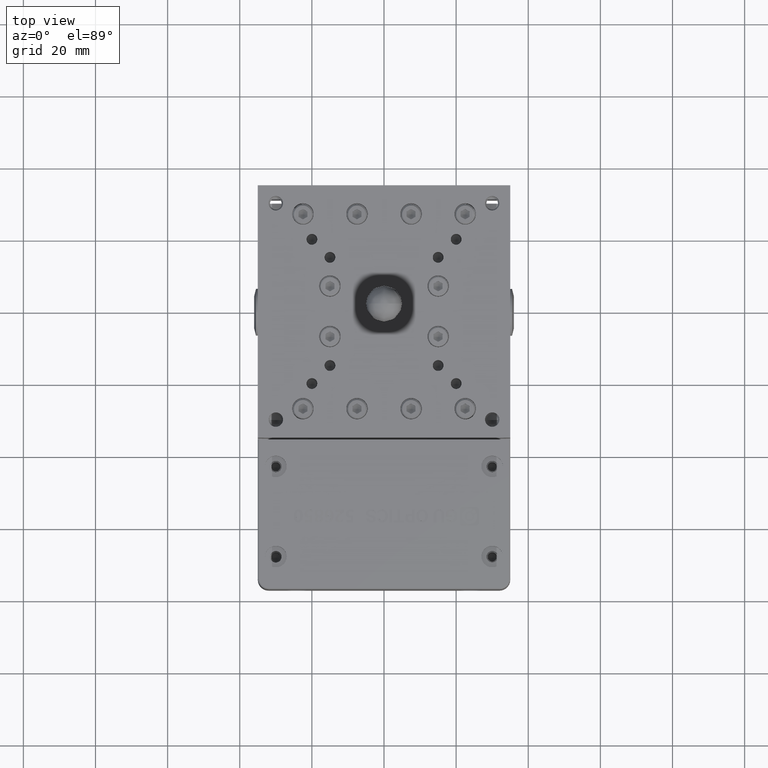
[diagram: clean part render]
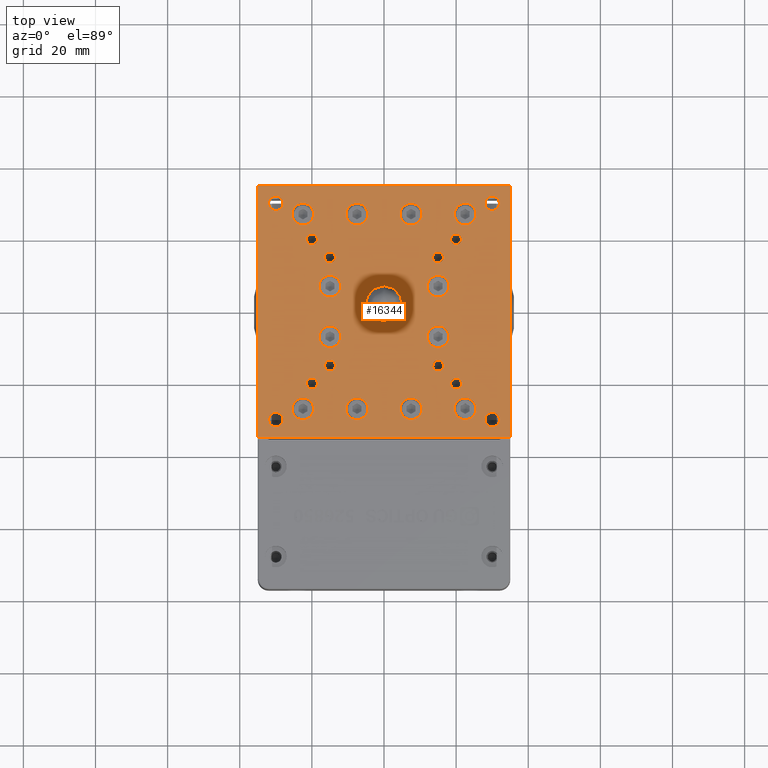
[diagram: same view with one face highlighted and labeled with its STEP entity id]
A machine part, top view. The second image highlights one B-rep face of the part: STEP entity #16344.
In plain terms, the highlighted planar face has unit normal (0, 0, 1).
Its self-contained STEP definition (entity closure, byte-faithful):
#84 = EDGE_CURVE ( 'NONE', #33697, #4668, #62329, .T. ) ;
#746 = CARTESIAN_POINT ( 'NONE',  ( 20.00000084893999700, -20.00000000000000000, 25.99999980735999800 ) ) ;
#747 = CIRCLE ( 'NONE', #22461, 3.000000000000002700 ) ;
#855 = EDGE_LOOP ( 'NONE', ( #10549, #48262 ) ) ;
#968 = AXIS2_PLACEMENT_3D ( 'NONE', #67553, #28471, #74145 ) ;
#1034 = CARTESIAN_POINT ( 'NONE',  ( -16.49999915106536400, 15.00000000000000000, 25.99999980735999800 ) ) ;
#1527 = CARTESIAN_POINT ( 'NONE',  ( 30.00000084893999700, 30.00000000000000000, 25.99999980735999800 ) ) ;
#1991 = CARTESIAN_POINT ( 'NONE',  ( -14.99999915105999700, 7.000000000000000000, 25.99999980735999800 ) ) ;
#2087 = VERTEX_POINT ( 'NONE', #54026 ) ;
#2173 = DIRECTION ( 'NONE',  ( 1.000000000000000000, 0.0000000000000000000, 0.0000000000000000000 ) ) ;
#2241 = CARTESIAN_POINT ( 'NONE',  ( 7.500000848934999600, -24.00000000000000000, 25.99999980735999800 ) ) ;
#2510 = VERTEX_POINT ( 'NONE', #78344 ) ;
#2529 = DIRECTION ( 'NONE',  ( 0.0000000000000000000, 1.000000000000000000, -1.156482317317873100E-015 ) ) ;
#2572 = ORIENTED_EDGE ( 'NONE', *, *, #63453, .F. ) ;
#2829 = AXIS2_PLACEMENT_3D ( 'NONE', #72536, #33407, #79086 ) ;
#2845 = AXIS2_PLACEMENT_3D ( 'NONE', #9225, #55006, #15837 ) ;
#2849 = CARTESIAN_POINT ( 'NONE',  ( 16.50000084893538600, 15.00000000000000000, 25.99999980735999800 ) ) ;
#2943 = DIRECTION ( 'NONE',  ( -0.0000000000000000000, 5.782411586589368500E-016, 1.000000000000000000 ) ) ;
#3049 = VECTOR ( 'NONE', #78395, 1000.000000000000000 ) ;
#3336 = ORIENTED_EDGE ( 'NONE', *, *, #65622, .F. ) ;
#3375 = DIRECTION ( 'NONE',  ( -0.0000000000000000000, 0.0000000000000000000, 1.000000000000000000 ) ) ;
#3688 = CIRCLE ( 'NONE', #10610, 2.999999999999999100 ) ;
#3779 = CARTESIAN_POINT ( 'NONE',  ( 22.50000084893999700, -24.00000000000000400, 25.99999980735999500 ) ) ;
#4031 = ORIENTED_EDGE ( 'NONE', *, *, #80754, .F. ) ;
#4156 = PLANE ( 'NONE',  #61993 ) ;
#4250 = VERTEX_POINT ( 'NONE', #23858 ) ;
#4456 = DIRECTION ( 'NONE',  ( 0.0000000000000000000, -0.0000000000000000000, 1.000000000000000000 ) ) ;
#4488 = FACE_BOUND ( 'NONE', #72363, .T. ) ;
#4668 = VERTEX_POINT ( 'NONE', #3779 ) ;
#4671 = CARTESIAN_POINT ( 'NONE',  ( -27.99999915105938800, 30.00000000000000000, 25.99999980735999800 ) ) ;
#4873 = ORIENTED_EDGE ( 'NONE', *, *, #41211, .F. ) ;
#4946 = VERTEX_POINT ( 'NONE', #32650 ) ;
#5258 = EDGE_CURVE ( 'NONE', #4946, #29195, #68198, .T. ) ;
#5481 = EDGE_CURVE ( 'NONE', #69488, #29465, #64023, .T. ) ;
#6043 = DIRECTION ( 'NONE',  ( 0.0000000000000000000, 0.0000000000000000000, 1.000000000000000000 ) ) ;
#6050 = DIRECTION ( 'NONE',  ( 0.0000000000000000000, 1.000000000000000000, -1.387778780781417700E-015 ) ) ;
#6258 = DIRECTION ( 'NONE',  ( 0.0000000000000000000, 0.0000000000000000000, 1.000000000000000000 ) ) ;
#6342 = VERTEX_POINT ( 'NONE', #80783 ) ;
#6366 = DIRECTION ( 'NONE',  ( 0.0000000000000000000, 1.000000000000000000, -1.156482317317870300E-015 ) ) ;
#6420 = AXIS2_PLACEMENT_3D ( 'NONE', #76171, #37098, #82770 ) ;
#6502 = AXIS2_PLACEMENT_3D ( 'NONE', #84321, #45230, #6050 ) ;
#6521 = FACE_BOUND ( 'NONE', #80540, .T. ) ;
#6534 = DIRECTION ( 'NONE',  ( 0.0000000000000000000, 0.0000000000000000000, 1.000000000000000000 ) ) ;
#6781 = EDGE_CURVE ( 'NONE', #29690, #21667, #33995, .T. ) ;
#6818 = DIRECTION ( 'NONE',  ( 0.0000000000000000000, -0.0000000000000000000, 1.000000000000000000 ) ) ;
#6851 = CARTESIAN_POINT ( 'NONE',  ( 15.00000084894000100, -7.000000000000000000, 25.99999980735999800 ) ) ;
#6963 = CIRCLE ( 'NONE', #65817, 2.000000000000608800 ) ;
#7293 = DIRECTION ( 'NONE',  ( 1.000000000000000000, 0.0000000000000000000, 0.0000000000000000000 ) ) ;
#7302 = CIRCLE ( 'NONE', #44271, 3.000000000000002700 ) ;
#7359 = EDGE_CURVE ( 'NONE', #21667, #29690, #36978, .T. ) ;
#7638 = CIRCLE ( 'NONE', #81306, 1.499999999993801400 ) ;
#8040 = CARTESIAN_POINT ( 'NONE',  ( 30.00000084893999700, -30.00000000000000000, 25.99999980735999800 ) ) ;
#8111 = DIRECTION ( 'NONE',  ( 1.000000000000000000, 0.0000000000000000000, 0.0000000000000000000 ) ) ;
#8232 = AXIS2_PLACEMENT_3D ( 'NONE', #67266, #28163, #73839 ) ;
#8434 = DIRECTION ( 'NONE',  ( 0.0000000000000000000, -0.0000000000000000000, 1.000000000000000000 ) ) ;
#8556 = FACE_BOUND ( 'NONE', #46671, .T. ) ;
#8559 = DIRECTION ( 'NONE',  ( 0.0000000000000000000, 1.000000000000000000, -1.156482317317870700E-015 ) ) ;
#8720 = CIRCLE ( 'NONE', #83399, 1.500000000005366800 ) ;
#9027 = CARTESIAN_POINT ( 'NONE',  ( 15.00000084894000100, 4.000000000000000900, 25.99999980736000200 ) ) ;
#9225 = CARTESIAN_POINT ( 'NONE',  ( -19.99999915105999500, 20.00000000000000000, 25.99999980735999800 ) ) ;
#9465 = DIRECTION ( 'NONE',  ( -0.0000000000000000000, 5.782411586598998500E-016, 1.000000000000000000 ) ) ;
#9565 = VERTEX_POINT ( 'NONE', #4671 ) ;
#9578 = VERTEX_POINT ( 'NONE', #24684 ) ;
#9791 = CARTESIAN_POINT ( 'NONE',  ( -14.99999915105999700, 15.00000000000000000, 25.99999980735999800 ) ) ;
#9973 = CIRCLE ( 'NONE', #60089, 1.500000000005366800 ) ;
#10126 = VERTEX_POINT ( 'NONE', #17454 ) ;
#10227 = CARTESIAN_POINT ( 'NONE',  ( 15.00000084894000100, 15.00000000000000000, 25.99999980735999800 ) ) ;
#10233 = AXIS2_PLACEMENT_3D ( 'NONE', #45727, #6534, #52276 ) ;
#10317 = AXIS2_PLACEMENT_3D ( 'NONE', #73822, #34706, #80388 ) ;
#10352 = AXIS2_PLACEMENT_3D ( 'NONE', #1527, #47289, #8111 ) ;
#10503 = DIRECTION ( 'NONE',  ( 0.0000000000000000000, 1.000000000000000000, -1.156482317317873100E-015 ) ) ;
#10549 = ORIENTED_EDGE ( 'NONE', *, *, #32735, .F. ) ;
#10598 = FACE_BOUND ( 'NONE', #43251, .T. ) ;
#10610 = AXIS2_PLACEMENT_3D ( 'NONE', #38276, #83939, #44856 ) ;
#10792 = DIRECTION ( 'NONE',  ( -0.0000000000000000000, 5.782411586589352700E-016, 1.000000000000000000 ) ) ;
#11117 = EDGE_CURVE ( 'NONE', #57415, #24774, #54563, .T. ) ;
#11287 = AXIS2_PLACEMENT_3D ( 'NONE', #48650, #9465, #55238 ) ;
#11841 = VERTEX_POINT ( 'NONE', #75976 ) ;
#12242 = EDGE_CURVE ( 'NONE', #25008, #81354, #29640, .T. ) ;
#12349 = EDGE_CURVE ( 'NONE', #44019, #2510, #59224, .T. ) ;
#12463 = EDGE_CURVE ( 'NONE', #48021, #2087, #54081, .T. ) ;
#12680 = FACE_BOUND ( 'NONE', #66655, .T. ) ;
#12792 = ORIENTED_EDGE ( 'NONE', *, *, #52474, .T. ) ;
#13198 = DIRECTION ( 'NONE',  ( -0.0000000000000000000, 0.0000000000000000000, 1.000000000000000000 ) ) ;
#13325 = CARTESIAN_POINT ( 'NONE',  ( -7.499999151065000400, 29.99999999999499400, 25.99999980735999800 ) ) ;
#13532 = VERTEX_POINT ( 'NONE', #17888 ) ;
#13827 = ORIENTED_EDGE ( 'NONE', *, *, #12242, .F. ) ;
#13953 = AXIS2_PLACEMENT_3D ( 'NONE', #47634, #8434, #54200 ) ;
#13963 = CARTESIAN_POINT ( 'NONE',  ( 22.50000084893999700, 27.00000000000000000, 25.99999980735999800 ) ) ;
#14195 = CARTESIAN_POINT ( 'NONE',  ( -22.49999915106000600, -27.00000000000000000, 25.99999980735999800 ) ) ;
#14310 = EDGE_CURVE ( 'NONE', #74517, #29285, #22032, .T. ) ;
#14361 = CARTESIAN_POINT ( 'NONE',  ( -7.499999151065000400, -29.99999999999499400, 25.99999980735999800 ) ) ;
#14517 = EDGE_LOOP ( 'NONE', ( #71415, #54620 ) ) ;
#14638 = DIRECTION ( 'NONE',  ( 1.000000000000000000, 0.0000000000000000000, 0.0000000000000000000 ) ) ;
#14854 = VERTEX_POINT ( 'NONE', #15950 ) ;
#15154 = EDGE_CURVE ( 'NONE', #34151, #9578, #53516, .T. ) ;
#15837 = DIRECTION ( 'NONE',  ( 1.000000000000000000, 0.0000000000000000000, 0.0000000000000000000 ) ) ;
#15950 = CARTESIAN_POINT ( 'NONE',  ( 7.500000848934999600, -30.00000000000000000, 25.99999980735999800 ) ) ;
#16193 = CIRCLE ( 'NONE', #10233, 1.500000000003800300 ) ;
#16344 = ADVANCED_FACE ( 'NONE', ( #30094, #12680, #62785, #47473, #45421, #80170, #10598, #78107, #60751, #43370, #25969, #8556, #76029, #58668, #41334, #23951, #6521, #74016, #56637, #39290, #21925, #4488, #71979, #54602, #37241, #19844 ), #4156, .T. ) ;
#16370 = DIRECTION ( 'NONE',  ( 1.000000000000000000, 0.0000000000000000000, 0.0000000000000000000 ) ) ;
#16836 = DIRECTION ( 'NONE',  ( 1.000000000000000000, 0.0000000000000000000, 0.0000000000000000000 ) ) ;
#16935 = AXIS2_PLACEMENT_3D ( 'NONE', #49660, #56262, #10503 ) ;
#17403 = ORIENTED_EDGE ( 'NONE', *, *, #53052, .F. ) ;
#17454 = CARTESIAN_POINT ( 'NONE',  ( 13.50000084894461800, 15.00000000000000000, 25.99999980735999800 ) ) ;
#17888 = CARTESIAN_POINT ( 'NONE',  ( -14.99999915105999700, -10.00000000000000200, 25.99999980735999800 ) ) ;
#17979 = CIRCLE ( 'NONE', #79275, 1.500000000003800300 ) ;
#18538 = AXIS2_PLACEMENT_3D ( 'NONE', #63954, #24824, #70520 ) ;
#18542 = CIRCLE ( 'NONE', #29975, 2.999999999999995600 ) ;
#18679 = ORIENTED_EDGE ( 'NONE', *, *, #69550, .F. ) ;
#19117 = EDGE_CURVE ( 'NONE', #71212, #62886, #17979, .T. ) ;
#19354 = CARTESIAN_POINT ( 'NONE',  ( -14.99999915105999700, 3.999999999999997300, 25.99999980736000200 ) ) ;
#19676 = EDGE_LOOP ( 'NONE', ( #30740, #27999 ) ) ;
#19844 = FACE_OUTER_BOUND ( 'NONE', #56098, .T. ) ;
#19848 = CARTESIAN_POINT ( 'NONE',  ( -19.99999915105999500, -20.00000000000000000, 25.99999980735999800 ) ) ;
#20047 = AXIS2_PLACEMENT_3D ( 'NONE', #30584, #76228, #37154 ) ;
#20322 = CARTESIAN_POINT ( 'NONE',  ( -14.99999915105999700, -7.000000000000000000, 25.99999980735999800 ) ) ;
#20523 = DIRECTION ( 'NONE',  ( 0.0000000000000000000, 1.000000000000000000, -1.156482317317873100E-015 ) ) ;
#20687 = AXIS2_PLACEMENT_3D ( 'NONE', #8040, #53798, #14638 ) ;
#20775 = DIRECTION ( 'NONE',  ( 0.0000000000000000000, 1.000000000000000000, -1.156482317317873100E-015 ) ) ;
#21021 = ORIENTED_EDGE ( 'NONE', *, *, #51446, .F. ) ;
#21294 = ORIENTED_EDGE ( 'NONE', *, *, #27944, .F. ) ;
#21311 = VERTEX_POINT ( 'NONE', #14361 ) ;
#21570 = EDGE_CURVE ( 'NONE', #57083, #11841, #23279, .T. ) ;
#21667 = VERTEX_POINT ( 'NONE', #65969 ) ;
#21874 = ORIENTED_EDGE ( 'NONE', *, *, #25283, .F. ) ;
#21915 = CIRCLE ( 'NONE', #50878, 2.000000000000608800 ) ;
#21925 = FACE_BOUND ( 'NONE', #63546, .T. ) ;
#22032 = CIRCLE ( 'NONE', #25062, 2.999999999999995600 ) ;
#22099 = EDGE_LOOP ( 'NONE', ( #21874, #45468 ) ) ;
#22170 = VERTEX_POINT ( 'NONE', #1034 ) ;
#22265 = CARTESIAN_POINT ( 'NONE',  ( -19.99999915105999500, 20.00000000000000000, 25.99999980735999800 ) ) ;
#22335 = EDGE_CURVE ( 'NONE', #30125, #36699, #37404, .T. ) ;
#22461 = AXIS2_PLACEMENT_3D ( 'NONE', #84660, #45562, #6366 ) ;
#23255 = ORIENTED_EDGE ( 'NONE', *, *, #79997, .F. ) ;
#23279 = CIRCLE ( 'NONE', #32486, 1.999999999990616800 ) ;
#23278 = DIRECTION ( 'NONE',  ( -0.0000000000000000000, 5.782411586589359600E-016, 1.000000000000000000 ) ) ;
#23351 = DIRECTION ( 'NONE',  ( 0.0000000000000000000, 0.0000000000000000000, 1.000000000000000000 ) ) ;
#23858 = CARTESIAN_POINT ( 'NONE',  ( -14.99999915105999700, 10.00000000000000200, 25.99999980735999500 ) ) ;
#23951 = FACE_BOUND ( 'NONE', #54128, .T. ) ;
#24031 = CARTESIAN_POINT ( 'NONE',  ( 22.50000084893999700, -29.99999999999999600, 25.99999980736000200 ) ) ;
#24218 = CARTESIAN_POINT ( 'NONE',  ( 15.00000084894000100, -15.00000000000000000, 25.99999980735999800 ) ) ;
#24639 = ORIENTED_EDGE ( 'NONE', *, *, #53602, .T. ) ;
#24684 = CARTESIAN_POINT ( 'NONE',  ( 22.50000084893999700, 29.99999999999999600, 25.99999980735999500 ) ) ;
#24774 = VERTEX_POINT ( 'NONE', #13325 ) ;
#24824 = DIRECTION ( 'NONE',  ( -0.0000000000000000000, 5.782411586589354700E-016, 1.000000000000000000 ) ) ;
#24878 = ORIENTED_EDGE ( 'NONE', *, *, #33121, .F. ) ;
#25008 = VERTEX_POINT ( 'NONE', #29003 ) ;
#25062 = AXIS2_PLACEMENT_3D ( 'NONE', #80851, #41760, #2529 ) ;
#25283 = EDGE_CURVE ( 'NONE', #44889, #64585, #55488, .T. ) ;
#25303 = DIRECTION ( 'NONE',  ( 0.0000000000000000000, -5.782411586589354700E-016, -1.000000000000000000 ) ) ;
#25582 = DIRECTION ( 'NONE',  ( 0.0000000000000000000, -1.000000000000000000, 0.0000000000000000000 ) ) ;
#25914 = CARTESIAN_POINT ( 'NONE',  ( 16.50000084893538600, -15.00000000000000000, 25.99999980735999800 ) ) ;
#25969 = FACE_BOUND ( 'NONE', #38481, .T. ) ;
#26247 = VERTEX_POINT ( 'NONE', #78182 ) ;
#26303 = EDGE_CURVE ( 'NONE', #6342, #48397, #71457, .T. ) ;
#26405 = DIRECTION ( 'NONE',  ( 1.000000000000000000, 0.0000000000000000000, 0.0000000000000000000 ) ) ;
#26526 = CARTESIAN_POINT ( 'NONE',  ( -29.99999915105999500, -30.00000000000000000, 25.99999980735999800 ) ) ;
#26877 = DIRECTION ( 'NONE',  ( 0.0000000000000000000, 1.000000000000000000, -1.156482317317870300E-015 ) ) ;
#27275 = AXIS2_PLACEMENT_3D ( 'NONE', #13963, #59659, #20523 ) ;
#27407 = DIRECTION ( 'NONE',  ( -0.0000000000000000000, 5.782411586589359600E-016, 1.000000000000000000 ) ) ;
#27418 = CARTESIAN_POINT ( 'NONE',  ( 30.00000084893999700, 30.00000000000000000, 25.99999980735999800 ) ) ;
#27441 = ORIENTED_EDGE ( 'NONE', *, *, #70948, .F. ) ;
#27944 = EDGE_CURVE ( 'NONE', #60555, #52466, #75076, .T. ) ;
#27999 = ORIENTED_EDGE ( 'NONE', *, *, #6781, .F. ) ;
#28163 = DIRECTION ( 'NONE',  ( -0.0000000000000000000, 5.782411586598998500E-016, 1.000000000000000000 ) ) ;
#28299 = EDGE_CURVE ( 'NONE', #29285, #74517, #76972, .T. ) ;
#28471 = DIRECTION ( 'NONE',  ( -0.0000000000000000000, 5.782411586598998500E-016, 1.000000000000000000 ) ) ;
#28482 = AXIS2_PLACEMENT_3D ( 'NONE', #42134, #2943, #48684 ) ;
#28692 = CARTESIAN_POINT ( 'NONE',  ( 21.50000084893380100, 20.00000000000000000, 25.99999980735999800 ) ) ;
#28708 = EDGE_CURVE ( 'NONE', #52466, #60555, #18542, .T. ) ;
#28823 = DIRECTION ( 'NONE',  ( 1.000000000000000000, 0.0000000000000000000, 0.0000000000000000000 ) ) ;
#28876 = ORIENTED_EDGE ( 'NONE', *, *, #77996, .F. ) ;
#29003 = CARTESIAN_POINT ( 'NONE',  ( -21.49999915106379700, 20.00000000000000000, 25.99999980735999800 ) ) ;
#29026 = CARTESIAN_POINT ( 'NONE',  ( 8.489350508183484100E-007, -2.500000000000024000, 25.99999980736000200 ) ) ;
#29052 = CARTESIAN_POINT ( 'NONE',  ( -21.49999915106379700, -20.00000000000000000, 25.99999980735999800 ) ) ;
#29132 = ORIENTED_EDGE ( 'NONE', *, *, #14310, .F. ) ;
#29195 = VERTEX_POINT ( 'NONE', #75620 ) ;
#29285 = VERTEX_POINT ( 'NONE', #39131 ) ;
#29465 = VERTEX_POINT ( 'NONE', #9027 ) ;
#29640 = CIRCLE ( 'NONE', #56925, 1.500000000003800300 ) ;
#29690 = VERTEX_POINT ( 'NONE', #44171 ) ;
#29959 = ORIENTED_EDGE ( 'NONE', *, *, #28299, .F. ) ;
#29975 = AXIS2_PLACEMENT_3D ( 'NONE', #70276, #31196, #76862 ) ;
#30094 = FACE_BOUND ( 'NONE', #22099, .T. ) ;
#30125 = VERTEX_POINT ( 'NONE', #42659 ) ;
#30558 = CIRCLE ( 'NONE', #27275, 2.999999999999995600 ) ;
#30584 = CARTESIAN_POINT ( 'NONE',  ( 15.00000084894000100, -7.000000000000000000, 25.99999980735999800 ) ) ;
#30740 = ORIENTED_EDGE ( 'NONE', *, *, #7359, .F. ) ;
#30793 = DIRECTION ( 'NONE',  ( 1.000000000000000000, 0.0000000000000000000, 0.0000000000000000000 ) ) ;
#30976 = EDGE_CURVE ( 'NONE', #48397, #6342, #7638, .T. ) ;
#31087 = AXIS2_PLACEMENT_3D ( 'NONE', #1991, #47769, #8559 ) ;
#31196 = DIRECTION ( 'NONE',  ( -0.0000000000000000000, 5.782411586589365500E-016, 1.000000000000000000 ) ) ;
#31527 = AXIS2_PLACEMENT_3D ( 'NONE', #52330, #13198, #58901 ) ;
#31538 = CARTESIAN_POINT ( 'NONE',  ( 8.489350505121867600E-007, 2.708944184362999800E-014, 25.99999980735999800 ) ) ;
#31863 = ORIENTED_EDGE ( 'NONE', *, *, #73730, .F. ) ;
#32265 = EDGE_LOOP ( 'NONE', ( #17403, #80674 ) ) ;
#32291 = CARTESIAN_POINT ( 'NONE',  ( 15.00000084894000100, -4.000000000000000900, 25.99999980735999500 ) ) ;
#32343 = CARTESIAN_POINT ( 'NONE',  ( -14.99999915105999700, -3.999999999999997300, 25.99999980735999500 ) ) ;
#32486 = AXIS2_PLACEMENT_3D ( 'NONE', #46008, #6818, #52542 ) ;
#32650 = CARTESIAN_POINT ( 'NONE',  ( 7.500000848934999600, 24.00000000000000000, 25.99999980735999800 ) ) ;
#32708 = ORIENTED_EDGE ( 'NONE', *, *, #83729, .F. ) ;
#32716 = CARTESIAN_POINT ( 'NONE',  ( -36.39999915106000100, -35.00000000000000000, 25.99999980735999800 ) ) ;
#32735 = EDGE_CURVE ( 'NONE', #36699, #30125, #73311, .T. ) ;
#33024 = ORIENTED_EDGE ( 'NONE', *, *, #57204, .F. ) ;
#33121 = EDGE_CURVE ( 'NONE', #75487, #10126, #52753, .T. ) ;
#33130 = DIRECTION ( 'NONE',  ( 1.000000000000000000, 0.0000000000000000000, 0.0000000000000000000 ) ) ;
#33407 = DIRECTION ( 'NONE',  ( 0.0000000000000000000, -5.782411586589354700E-016, -1.000000000000000000 ) ) ;
#33500 = AXIS2_PLACEMENT_3D ( 'NONE', #10227, #56000, #16836 ) ;
#33697 = VERTEX_POINT ( 'NONE', #24031 ) ;
#33978 = DIRECTION ( 'NONE',  ( 1.000000000000000000, 0.0000000000000000000, 0.0000000000000000000 ) ) ;
#33995 = CIRCLE ( 'NONE', #10352, 1.999999999990616800 ) ;
#34151 = VERTEX_POINT ( 'NONE', #65910 ) ;
#34533 = CARTESIAN_POINT ( 'NONE',  ( -31.99999915106061000, -30.00000000000000000, 25.99999980735999800 ) ) ;
#34649 = EDGE_LOOP ( 'NONE', ( #65694, #45614 ) ) ;
#34706 = DIRECTION ( 'NONE',  ( 0.0000000000000000000, -0.0000000000000000000, 1.000000000000000000 ) ) ;
#35079 = EDGE_CURVE ( 'NONE', #45680, #4250, #75220, .T. ) ;
#35930 = CARTESIAN_POINT ( 'NONE',  ( -22.49999915106000600, 29.99999999999999600, 25.99999980735999500 ) ) ;
#36026 = CARTESIAN_POINT ( 'NONE',  ( -13.49999915105463100, -15.00000000000000000, 25.99999980735999800 ) ) ;
#36216 = AXIS2_PLACEMENT_3D ( 'NONE', #746, #46492, #7293 ) ;
#36699 = VERTEX_POINT ( 'NONE', #28692 ) ;
#36760 = CIRCLE ( 'NONE', #31527, 1.500000000005366800 ) ;
#36978 = CIRCLE ( 'NONE', #52054, 1.999999999990616800 ) ;
#37005 = ORIENTED_EDGE ( 'NONE', *, *, #21570, .F. ) ;
#37077 = DIRECTION ( 'NONE',  ( 0.0000000000000000000, 0.0000000000000000000, 1.000000000000000000 ) ) ;
#37098 = DIRECTION ( 'NONE',  ( -0.0000000000000000000, 5.782411586589365500E-016, 1.000000000000000000 ) ) ;
#37114 = VERTEX_POINT ( 'NONE', #2241 ) ;
#37154 = DIRECTION ( 'NONE',  ( 0.0000000000000000000, 1.000000000000000000, -1.156482317317871700E-015 ) ) ;
#37241 = FACE_BOUND ( 'NONE', #56900, .T. ) ;
#37309 = AXIS2_PLACEMENT_3D ( 'NONE', #38727, #84379, #45282 ) ;
#37404 = CIRCLE ( 'NONE', #13953, 1.499999999993801400 ) ;
#37430 = VERTEX_POINT ( 'NONE', #46264 ) ;
#37435 = ORIENTED_EDGE ( 'NONE', *, *, #49435, .F. ) ;
#37828 = CARTESIAN_POINT ( 'NONE',  ( -14.99999915105999700, -15.00000000000000000, 25.99999980735999800 ) ) ;
#38106 = DIRECTION ( 'NONE',  ( 0.0000000000000000000, 1.000000000000000000, -1.387778780781417700E-015 ) ) ;
#38276 = CARTESIAN_POINT ( 'NONE',  ( 7.500000848934999600, 27.00000000000000000, 25.99999980735999800 ) ) ;
#38406 = DIRECTION ( 'NONE',  ( -0.0000000000000000000, 5.782411586589368500E-016, 1.000000000000000000 ) ) ;
#38464 = EDGE_LOOP ( 'NONE', ( #32708, #72902 ) ) ;
#38481 = EDGE_LOOP ( 'NONE', ( #12792, #24639 ) ) ;
#38607 = CARTESIAN_POINT ( 'NONE',  ( 15.00000084894000100, -15.00000000000000000, 25.99999980735999800 ) ) ;
#38727 = CARTESIAN_POINT ( 'NONE',  ( -7.499999151065000400, 27.00000000000000000, 25.99999980735999800 ) ) ;
#39131 = CARTESIAN_POINT ( 'NONE',  ( -22.49999915106000600, 24.00000000000000400, 25.99999980736000200 ) ) ;
#39290 = FACE_BOUND ( 'NONE', #855, .T. ) ;
#39982 = CARTESIAN_POINT ( 'NONE',  ( -34.99999915105999500, -36.39999999999999900, 25.99999980735999800 ) ) ;
#40012 = CIRCLE ( 'NONE', #20687, 1.999999999990616800 ) ;
#40178 = CIRCLE ( 'NONE', #33500, 1.499999999995383500 ) ;
#41211 = EDGE_CURVE ( 'NONE', #22170, #37430, #36760, .T. ) ;
#41334 = FACE_BOUND ( 'NONE', #74237, .T. ) ;
#41360 = VERTEX_POINT ( 'NONE', #80034 ) ;
#41390 = DIRECTION ( 'NONE',  ( 0.0000000000000000000, 0.0000000000000000000, 1.000000000000000000 ) ) ;
#41760 = DIRECTION ( 'NONE',  ( -0.0000000000000000000, 5.782411586589368500E-016, 1.000000000000000000 ) ) ;
#42134 = CARTESIAN_POINT ( 'NONE',  ( 22.50000084893999700, 27.00000000000000000, 25.99999980735999800 ) ) ;
#42545 = CARTESIAN_POINT ( 'NONE',  ( -29.99999915105999500, -30.00000000000000000, 25.99999980735999800 ) ) ;
#42659 = CARTESIAN_POINT ( 'NONE',  ( 18.50000084894619700, 20.00000000000000000, 25.99999980735999800 ) ) ;
#43251 = EDGE_LOOP ( 'NONE', ( #29132, #29959 ) ) ;
#43370 = FACE_BOUND ( 'NONE', #34649, .T. ) ;
#43610 = CARTESIAN_POINT ( 'NONE',  ( 20.00000084893999700, 20.00000000000000000, 25.99999980735999800 ) ) ;
#43734 = CIRCLE ( 'NONE', #6420, 2.999999999999995600 ) ;
#44019 = VERTEX_POINT ( 'NONE', #25914 ) ;
#44171 = CARTESIAN_POINT ( 'NONE',  ( 28.00000084894938400, 30.00000000000000000, 25.99999980735999800 ) ) ;
#44271 = AXIS2_PLACEMENT_3D ( 'NONE', #20322, #66004, #26877 ) ;
#44394 = DIRECTION ( 'NONE',  ( 1.000000000000000000, 0.0000000000000000000, 0.0000000000000000000 ) ) ;
#44856 = DIRECTION ( 'NONE',  ( 0.0000000000000000000, 1.000000000000000000, 0.0000000000000000000 ) ) ;
#44889 = VERTEX_POINT ( 'NONE', #76899 ) ;
#45146 = DIRECTION ( 'NONE',  ( 1.000000000000000000, 0.0000000000000000000, 0.0000000000000000000 ) ) ;
#45222 = CARTESIAN_POINT ( 'NONE',  ( -29.99999915105999500, 30.00000000000000000, 25.99999980735999800 ) ) ;
#45230 = DIRECTION ( 'NONE',  ( 2.407412430483947600E-031, 6.938893903907089300E-016, 1.000000000000000000 ) ) ;
#45282 = DIRECTION ( 'NONE',  ( 0.0000000000000000000, 1.000000000000000000, 0.0000000000000000000 ) ) ;
#45421 = FACE_BOUND ( 'NONE', #74833, .T. ) ;
#45466 = CARTESIAN_POINT ( 'NONE',  ( -29.99999915105999500, 30.00000000000000000, 25.99999980735999800 ) ) ;
#45468 = ORIENTED_EDGE ( 'NONE', *, *, #69573, .F. ) ;
#45562 = DIRECTION ( 'NONE',  ( -0.0000000000000000000, 5.782411586589351700E-016, 1.000000000000000000 ) ) ;
#45614 = ORIENTED_EDGE ( 'NONE', *, *, #15154, .F. ) ;
#45676 = CARTESIAN_POINT ( 'NONE',  ( -22.49999915106000600, -24.00000000000000400, 25.99999980735999500 ) ) ;
#45680 = VERTEX_POINT ( 'NONE', #19354 ) ;
#45727 = CARTESIAN_POINT ( 'NONE',  ( -19.99999915105999500, -20.00000000000000000, 25.99999980735999800 ) ) ;
#46008 = CARTESIAN_POINT ( 'NONE',  ( 30.00000084893999700, -30.00000000000000000, 25.99999980735999800 ) ) ;
#46049 = EDGE_LOOP ( 'NONE', ( #24878, #27441 ) ) ;
#46206 = CIRCLE ( 'NONE', #73943, 2.999999999999998200 ) ;
#46264 = CARTESIAN_POINT ( 'NONE',  ( -13.49999915105463100, 15.00000000000000000, 25.99999980735999800 ) ) ;
#46294 = VERTEX_POINT ( 'NONE', #52488 ) ;
#46393 = ORIENTED_EDGE ( 'NONE', *, *, #80598, .F. ) ;
#46446 = AXIS2_PLACEMENT_3D ( 'NONE', #6851, #52590, #81399 ) ;
#46492 = DIRECTION ( 'NONE',  ( 0.0000000000000000000, 0.0000000000000000000, 1.000000000000000000 ) ) ;
#46671 = EDGE_LOOP ( 'NONE', ( #65051, #21294 ) ) ;
#46790 = CARTESIAN_POINT ( 'NONE',  ( -22.49999915106000600, -29.99999999999999600, 25.99999980736000200 ) ) ;
#47004 = VECTOR ( 'NONE', #47441, 1000.000000000000000 ) ;
#47289 = DIRECTION ( 'NONE',  ( 0.0000000000000000000, 0.0000000000000000000, 1.000000000000000000 ) ) ;
#47326 = EDGE_CURVE ( 'NONE', #2510, #44019, #75407, .T. ) ;
#47441 = DIRECTION ( 'NONE',  ( 1.000000000000000000, 0.0000000000000000000, 0.0000000000000000000 ) ) ;
#47473 = FACE_BOUND ( 'NONE', #81113, .T. ) ;
#47634 = CARTESIAN_POINT ( 'NONE',  ( 20.00000084893999700, 20.00000000000000000, 25.99999980735999800 ) ) ;
#47769 = DIRECTION ( 'NONE',  ( -0.0000000000000000000, 5.782411586589352700E-016, 1.000000000000000000 ) ) ;
#47837 = ORIENTED_EDGE ( 'NONE', *, *, #51690, .F. ) ;
#48021 = VERTEX_POINT ( 'NONE', #49286 ) ;
#48262 = ORIENTED_EDGE ( 'NONE', *, *, #22335, .F. ) ;
#48397 = VERTEX_POINT ( 'NONE', #66302 ) ;
#48588 = EDGE_CURVE ( 'NONE', #53528, #53105, #57667, .T. ) ;
#48650 = CARTESIAN_POINT ( 'NONE',  ( -7.499999151065000400, -27.00000000000000000, 25.99999980735999800 ) ) ;
#48684 = DIRECTION ( 'NONE',  ( 0.0000000000000000000, 1.000000000000000000, -1.156482317317873100E-015 ) ) ;
#49099 = DIRECTION ( 'NONE',  ( 1.000000000000000000, 0.0000000000000000000, 0.0000000000000000000 ) ) ;
#49286 = CARTESIAN_POINT ( 'NONE',  ( 35.00000084893999000, 35.00000000000000000, 25.99999980735999800 ) ) ;
#49364 = EDGE_LOOP ( 'NONE', ( #68840, #28876 ) ) ;
#49435 = EDGE_CURVE ( 'NONE', #37430, #22170, #9973, .T. ) ;
#49660 = CARTESIAN_POINT ( 'NONE',  ( 22.50000084893999700, -27.00000000000000000, 25.99999980735999800 ) ) ;
#49766 = EDGE_LOOP ( 'NONE', ( #33024, #13827 ) ) ;
#49972 = CARTESIAN_POINT ( 'NONE',  ( -14.99999915105999700, 7.000000000000000000, 25.99999980735999800 ) ) ;
#50172 = DIRECTION ( 'NONE',  ( 1.000000000000000000, 0.0000000000000000000, 0.0000000000000000000 ) ) ;
#50878 = AXIS2_PLACEMENT_3D ( 'NONE', #45222, #6043, #51776 ) ;
#51446 = EDGE_CURVE ( 'NONE', #61412, #21311, #81997, .T. ) ;
#51690 = EDGE_CURVE ( 'NONE', #29465, #69488, #46206, .T. ) ;
#51776 = DIRECTION ( 'NONE',  ( 1.000000000000000000, 0.0000000000000000000, 0.0000000000000000000 ) ) ;
#52011 = DIRECTION ( 'NONE',  ( 1.000000000000000000, 0.0000000000000000000, 0.0000000000000000000 ) ) ;
#52054 = AXIS2_PLACEMENT_3D ( 'NONE', #27418, #73077, #33978 ) ;
#52276 = DIRECTION ( 'NONE',  ( 1.000000000000000000, 0.0000000000000000000, 0.0000000000000000000 ) ) ;
#52330 = CARTESIAN_POINT ( 'NONE',  ( -14.99999915105999700, 15.00000000000000000, 25.99999980735999800 ) ) ;
#52456 = EDGE_CURVE ( 'NONE', #46294, #52606, #6963, .T. ) ;
#52466 = VERTEX_POINT ( 'NONE', #45676 ) ;
#52474 = EDGE_CURVE ( 'NONE', #37114, #14854, #74437, .T. ) ;
#52488 = CARTESIAN_POINT ( 'NONE',  ( -27.99999915105938800, -30.00000000000000000, 25.99999980735999800 ) ) ;
#52542 = DIRECTION ( 'NONE',  ( 1.000000000000000000, 0.0000000000000000000, 0.0000000000000000000 ) ) ;
#52590 = DIRECTION ( 'NONE',  ( -0.0000000000000000000, 5.782411586589358600E-016, 1.000000000000000000 ) ) ;
#52606 = VERTEX_POINT ( 'NONE', #34533 ) ;
#52753 = CIRCLE ( 'NONE', #10317, 1.499999999995383500 ) ;
#53052 = EDGE_CURVE ( 'NONE', #29195, #4946, #3688, .T. ) ;
#53105 = VERTEX_POINT ( 'NONE', #32291 ) ;
#53469 = ORIENTED_EDGE ( 'NONE', *, *, #5481, .F. ) ;
#53516 = CIRCLE ( 'NONE', #28482, 2.999999999999995600 ) ;
#53528 = VERTEX_POINT ( 'NONE', #56474 ) ;
#53602 = EDGE_CURVE ( 'NONE', #14854, #37114, #75994, .T. ) ;
#53620 = CIRCLE ( 'NONE', #78783, 2.500000000000050600 ) ;
#53753 = ORIENTED_EDGE ( 'NONE', *, *, #26303, .F. ) ;
#53798 = DIRECTION ( 'NONE',  ( 0.0000000000000000000, -0.0000000000000000000, 1.000000000000000000 ) ) ;
#53861 = AXIS2_PLACEMENT_3D ( 'NONE', #38607, #84249, #45146 ) ;
#54026 = CARTESIAN_POINT ( 'NONE',  ( 35.00000084893999000, -35.00000000000000000, 25.99999980735999800 ) ) ;
#54081 = LINE ( 'NONE', #64734, #71439 ) ;
#54128 = EDGE_LOOP ( 'NONE', ( #66290, #59639 ) ) ;
#54200 = DIRECTION ( 'NONE',  ( 1.000000000000000000, 0.0000000000000000000, 0.0000000000000000000 ) ) ;
#54343 = EDGE_CURVE ( 'NONE', #11841, #57083, #40012, .T. ) ;
#54454 = CIRCLE ( 'NONE', #37309, 2.999999999994996400 ) ;
#54563 = CIRCLE ( 'NONE', #968, 2.999999999994996400 ) ;
#54602 = FACE_BOUND ( 'NONE', #57287, .T. ) ;
#54620 = ORIENTED_EDGE ( 'NONE', *, *, #48588, .F. ) ;
#55006 = DIRECTION ( 'NONE',  ( -0.0000000000000000000, 0.0000000000000000000, 1.000000000000000000 ) ) ;
#55125 = CIRCLE ( 'NONE', #63738, 2.000000000000608800 ) ;
#55238 = DIRECTION ( 'NONE',  ( 0.0000000000000000000, 1.000000000000000000, 0.0000000000000000000 ) ) ;
#55253 = LINE ( 'NONE', #32716, #3049 ) ;
#55488 = CIRCLE ( 'NONE', #6502, 2.500000000000050600 ) ;
#55542 = DIRECTION ( 'NONE',  ( -0.0000000000000000000, 0.0000000000000000000, 1.000000000000000000 ) ) ;
#56000 = DIRECTION ( 'NONE',  ( 0.0000000000000000000, -0.0000000000000000000, 1.000000000000000000 ) ) ;
#56098 = EDGE_LOOP ( 'NONE', ( #70249, #3336, #56353, #46393 ) ) ;
#56262 = DIRECTION ( 'NONE',  ( -0.0000000000000000000, 5.782411586589365500E-016, 1.000000000000000000 ) ) ;
#56353 = ORIENTED_EDGE ( 'NONE', *, *, #12463, .F. ) ;
#56474 = CARTESIAN_POINT ( 'NONE',  ( 15.00000084894000100, -9.999999999999998200, 25.99999980736000200 ) ) ;
#56546 = DIRECTION ( 'NONE',  ( 0.0000000000000000000, 1.000000000000000000, -1.156482317317870700E-015 ) ) ;
#56637 = FACE_BOUND ( 'NONE', #46049, .T. ) ;
#56900 = EDGE_LOOP ( 'NONE', ( #18679, #73498 ) ) ;
#56925 = AXIS2_PLACEMENT_3D ( 'NONE', #22265, #67914, #28823 ) ;
#57083 = VERTEX_POINT ( 'NONE', #66147 ) ;
#57204 = EDGE_CURVE ( 'NONE', #81354, #25008, #79029, .T. ) ;
#57287 = EDGE_LOOP ( 'NONE', ( #61747, #4031 ) ) ;
#57415 = VERTEX_POINT ( 'NONE', #58653 ) ;
#57440 = EDGE_LOOP ( 'NONE', ( #23255, #75521 ) ) ;
#57667 = CIRCLE ( 'NONE', #20047, 2.999999999999999100 ) ;
#58346 = AXIS2_PLACEMENT_3D ( 'NONE', #77516, #38406, #84065 ) ;
#58580 = EDGE_CURVE ( 'NONE', #9565, #62132, #73909, .T. ) ;
#58653 = CARTESIAN_POINT ( 'NONE',  ( -7.499999151065000400, 24.00000000000500200, 25.99999980735999800 ) ) ;
#58668 = FACE_BOUND ( 'NONE', #81946, .T. ) ;
#58796 = AXIS2_PLACEMENT_3D ( 'NONE', #49972, #10792, #56546 ) ;
#58901 = DIRECTION ( 'NONE',  ( 1.000000000000000000, 0.0000000000000000000, 0.0000000000000000000 ) ) ;
#59224 = CIRCLE ( 'NONE', #59682, 1.499999999995383500 ) ;
#59639 = ORIENTED_EDGE ( 'NONE', *, *, #47326, .F. ) ;
#59641 = ORIENTED_EDGE ( 'NONE', *, *, #35079, .F. ) ;
#59659 = DIRECTION ( 'NONE',  ( -0.0000000000000000000, 5.782411586589368500E-016, 1.000000000000000000 ) ) ;
#59682 = AXIS2_PLACEMENT_3D ( 'NONE', #24218, #69869, #30793 ) ;
#59890 = DIRECTION ( 'NONE',  ( -0.0000000000000000000, 5.782411586589365500E-016, 1.000000000000000000 ) ) ;
#60089 = AXIS2_PLACEMENT_3D ( 'NONE', #9791, #55542, #16370 ) ;
#60137 = EDGE_CURVE ( 'NONE', #53105, #53528, #83588, .T. ) ;
#60555 = VERTEX_POINT ( 'NONE', #46790 ) ;
#60640 = CIRCLE ( 'NONE', #11287, 2.999999999994996400 ) ;
#60751 = FACE_BOUND ( 'NONE', #57440, .T. ) ;
#61091 = AXIS2_PLACEMENT_3D ( 'NONE', #64416, #25303, #71009 ) ;
#61412 = VERTEX_POINT ( 'NONE', #70872 ) ;
#61747 = ORIENTED_EDGE ( 'NONE', *, *, #52456, .F. ) ;
#61993 = AXIS2_PLACEMENT_3D ( 'NONE', #76148, #37077, #82749 ) ;
#62132 = VERTEX_POINT ( 'NONE', #75278 ) ;
#62329 = CIRCLE ( 'NONE', #16935, 2.999999999999995600 ) ;
#62384 = CARTESIAN_POINT ( 'NONE',  ( 15.00000084894000100, 7.000000000000000000, 25.99999980735999800 ) ) ;
#62449 = CARTESIAN_POINT ( 'NONE',  ( -14.99999915105999700, -15.00000000000000000, 25.99999980735999800 ) ) ;
#62785 = FACE_BOUND ( 'NONE', #38464, .T. ) ;
#62886 = VERTEX_POINT ( 'NONE', #29052 ) ;
#63413 = AXIS2_PLACEMENT_3D ( 'NONE', #43610, #4456, #50172 ) ;
#63453 = EDGE_CURVE ( 'NONE', #21311, #61412, #60640, .T. ) ;
#63546 = EDGE_LOOP ( 'NONE', ( #70951, #64493 ) ) ;
#63738 = AXIS2_PLACEMENT_3D ( 'NONE', #42545, #3375, #49099 ) ;
#63839 = EDGE_CURVE ( 'NONE', #13532, #81437, #7302, .T. ) ;
#63954 = CARTESIAN_POINT ( 'NONE',  ( 7.500000848934999600, 27.00000000000000000, 25.99999980735999800 ) ) ;
#64023 = CIRCLE ( 'NONE', #73854, 2.999999999999998200 ) ;
#64416 = CARTESIAN_POINT ( 'NONE',  ( 7.500000848934999600, -27.00000000000000000, 25.99999980735999800 ) ) ;
#64493 = ORIENTED_EDGE ( 'NONE', *, *, #69673, .F. ) ;
#64585 = VERTEX_POINT ( 'NONE', #29026 ) ;
#64734 = CARTESIAN_POINT ( 'NONE',  ( 35.00000084893999700, 36.39999999999999900, 25.99999980735999800 ) ) ;
#65051 = ORIENTED_EDGE ( 'NONE', *, *, #28708, .F. ) ;
#65548 = DIRECTION ( 'NONE',  ( 0.0000000000000000000, 0.0000000000000000000, 1.000000000000000000 ) ) ;
#65622 = EDGE_CURVE ( 'NONE', #2087, #41360, #55253, .T. ) ;
#65694 = ORIENTED_EDGE ( 'NONE', *, *, #73589, .F. ) ;
#65817 = AXIS2_PLACEMENT_3D ( 'NONE', #26526, #72246, #33130 ) ;
#65910 = CARTESIAN_POINT ( 'NONE',  ( 22.50000084893999700, 24.00000000000000400, 25.99999980736000200 ) ) ;
#65969 = CARTESIAN_POINT ( 'NONE',  ( 32.00000084893061100, 30.00000000000000000, 25.99999980735999800 ) ) ;
#66004 = DIRECTION ( 'NONE',  ( -0.0000000000000000000, 5.782411586589351700E-016, 1.000000000000000000 ) ) ;
#66147 = CARTESIAN_POINT ( 'NONE',  ( 32.00000084893061100, -30.00000000000000000, 25.99999980735999800 ) ) ;
#66290 = ORIENTED_EDGE ( 'NONE', *, *, #12349, .F. ) ;
#66302 = CARTESIAN_POINT ( 'NONE',  ( 18.50000084894619700, -20.00000000000000000, 25.99999980735999800 ) ) ;
#66482 = CARTESIAN_POINT ( 'NONE',  ( 15.00000084894000100, 7.000000000000000000, 25.99999980735999800 ) ) ;
#66558 = CARTESIAN_POINT ( 'NONE',  ( -36.39999915106000100, 35.00000000000000000, 25.99999980735999800 ) ) ;
#66655 = EDGE_LOOP ( 'NONE', ( #53469, #47837 ) ) ;
#66806 = EDGE_CURVE ( 'NONE', #80193, #79470, #8720, .T. ) ;
#67266 = CARTESIAN_POINT ( 'NONE',  ( -7.499999151065000400, -27.00000000000000000, 25.99999980735999800 ) ) ;
#67553 = CARTESIAN_POINT ( 'NONE',  ( -7.499999151065000400, 27.00000000000000000, 25.99999980735999800 ) ) ;
#67914 = DIRECTION ( 'NONE',  ( -0.0000000000000000000, 0.0000000000000000000, 1.000000000000000000 ) ) ;
#68198 = CIRCLE ( 'NONE', #18538, 2.999999999999999100 ) ;
#68390 = CIRCLE ( 'NONE', #31087, 3.000000000000001800 ) ;
#68840 = ORIENTED_EDGE ( 'NONE', *, *, #19117, .F. ) ;
#68894 = DIRECTION ( 'NONE',  ( 0.0000000000000000000, 1.000000000000000000, -1.156482317317872100E-015 ) ) ;
#68895 = ORIENTED_EDGE ( 'NONE', *, *, #30976, .F. ) ;
#68965 = DIRECTION ( 'NONE',  ( 1.000000000000000000, 0.0000000000000000000, 0.0000000000000000000 ) ) ;
#69483 = CARTESIAN_POINT ( 'NONE',  ( 15.00000084894000100, 9.999999999999998200, 25.99999980735999500 ) ) ;
#69488 = VERTEX_POINT ( 'NONE', #69483 ) ;
#69550 = EDGE_CURVE ( 'NONE', #79470, #80193, #73015, .T. ) ;
#69573 = EDGE_CURVE ( 'NONE', #64585, #44889, #53620, .T. ) ;
#69673 = EDGE_CURVE ( 'NONE', #62132, #9565, #21915, .T. ) ;
#69869 = DIRECTION ( 'NONE',  ( 0.0000000000000000000, 0.0000000000000000000, 1.000000000000000000 ) ) ;
#70249 = ORIENTED_EDGE ( 'NONE', *, *, #73592, .F. ) ;
#70276 = CARTESIAN_POINT ( 'NONE',  ( -22.49999915106000600, -27.00000000000000000, 25.99999980735999800 ) ) ;
#70520 = DIRECTION ( 'NONE',  ( 0.0000000000000000000, 1.000000000000000000, 0.0000000000000000000 ) ) ;
#70872 = CARTESIAN_POINT ( 'NONE',  ( -7.499999151065000400, -24.00000000000500200, 25.99999980735999800 ) ) ;
#70948 = EDGE_CURVE ( 'NONE', #10126, #75487, #40178, .T. ) ;
#70951 = ORIENTED_EDGE ( 'NONE', *, *, #58580, .F. ) ;
#71002 = CARTESIAN_POINT ( 'NONE',  ( -18.49999915105619400, 20.00000000000000000, 25.99999980735999800 ) ) ;
#71009 = DIRECTION ( 'NONE',  ( 0.0000000000000000000, 1.000000000000000000, 0.0000000000000000000 ) ) ;
#71212 = VERTEX_POINT ( 'NONE', #78787 ) ;
#71415 = ORIENTED_EDGE ( 'NONE', *, *, #60137, .F. ) ;
#71439 = VECTOR ( 'NONE', #25582, 1000.000000000000000 ) ;
#71457 = CIRCLE ( 'NONE', #36216, 1.499999999993801400 ) ;
#71979 = FACE_BOUND ( 'NONE', #49766, .T. ) ;
#72027 = AXIS2_PLACEMENT_3D ( 'NONE', #14195, #59890, #20775 ) ;
#72246 = DIRECTION ( 'NONE',  ( -0.0000000000000000000, 0.0000000000000000000, 1.000000000000000000 ) ) ;
#72289 = ORIENTED_EDGE ( 'NONE', *, *, #84, .F. ) ;
#72363 = EDGE_LOOP ( 'NONE', ( #37435, #4873 ) ) ;
#72536 = CARTESIAN_POINT ( 'NONE',  ( 7.500000848934999600, -27.00000000000000000, 25.99999980735999800 ) ) ;
#72902 = ORIENTED_EDGE ( 'NONE', *, *, #63839, .F. ) ;
#73015 = CIRCLE ( 'NONE', #83146, 1.500000000005366800 ) ;
#73056 = DIRECTION ( 'NONE',  ( 0.0000000000000000000, 1.000000000000000000, -1.156482317317872100E-015 ) ) ;
#73077 = DIRECTION ( 'NONE',  ( 0.0000000000000000000, 0.0000000000000000000, 1.000000000000000000 ) ) ;
#73311 = CIRCLE ( 'NONE', #63413, 1.499999999993801400 ) ;
#73498 = ORIENTED_EDGE ( 'NONE', *, *, #66806, .F. ) ;
#73589 = EDGE_CURVE ( 'NONE', #9578, #34151, #30558, .T. ) ;
#73592 = EDGE_CURVE ( 'NONE', #41360, #26247, #82652, .T. ) ;
#73730 = EDGE_CURVE ( 'NONE', #4668, #33697, #43734, .T. ) ;
#73822 = CARTESIAN_POINT ( 'NONE',  ( 15.00000084894000100, 15.00000000000000000, 25.99999980735999800 ) ) ;
#73839 = DIRECTION ( 'NONE',  ( 0.0000000000000000000, 1.000000000000000000, 0.0000000000000000000 ) ) ;
#73854 = AXIS2_PLACEMENT_3D ( 'NONE', #66482, #27407, #73056 ) ;
#73909 = CIRCLE ( 'NONE', #79095, 2.000000000000608800 ) ;
#73943 = AXIS2_PLACEMENT_3D ( 'NONE', #62384, #23278, #68894 ) ;
#74016 = FACE_BOUND ( 'NONE', #19676, .T. ) ;
#74145 = DIRECTION ( 'NONE',  ( 0.0000000000000000000, 1.000000000000000000, 0.0000000000000000000 ) ) ;
#74237 = EDGE_LOOP ( 'NONE', ( #37005, #81426 ) ) ;
#74437 = CIRCLE ( 'NONE', #2829, 2.999999999999999100 ) ;
#74517 = VERTEX_POINT ( 'NONE', #35930 ) ;
#74833 = EDGE_LOOP ( 'NONE', ( #31863, #72289 ) ) ;
#74843 = ORIENTED_EDGE ( 'NONE', *, *, #77830, .F. ) ;
#75076 = CIRCLE ( 'NONE', #72027, 2.999999999999995600 ) ;
#75220 = CIRCLE ( 'NONE', #58796, 3.000000000000001800 ) ;
#75278 = CARTESIAN_POINT ( 'NONE',  ( -31.99999915106061000, 30.00000000000000000, 25.99999980735999800 ) ) ;
#75407 = CIRCLE ( 'NONE', #53861, 1.499999999995383500 ) ;
#75487 = VERTEX_POINT ( 'NONE', #2849 ) ;
#75521 = ORIENTED_EDGE ( 'NONE', *, *, #11117, .F. ) ;
#75620 = CARTESIAN_POINT ( 'NONE',  ( 7.500000848934999600, 30.00000000000000000, 25.99999980735999800 ) ) ;
#75976 = CARTESIAN_POINT ( 'NONE',  ( 28.00000084894938400, -30.00000000000000000, 25.99999980735999800 ) ) ;
#75994 = CIRCLE ( 'NONE', #61091, 2.999999999999999100 ) ;
#76029 = FACE_BOUND ( 'NONE', #14517, .T. ) ;
#76148 = CARTESIAN_POINT ( 'NONE',  ( -36.39999915106000100, -36.39999999999999900, 25.99999980735999800 ) ) ;
#76171 = CARTESIAN_POINT ( 'NONE',  ( 22.50000084893999700, -27.00000000000000000, 25.99999980735999800 ) ) ;
#76228 = DIRECTION ( 'NONE',  ( -0.0000000000000000000, 5.782411586589358600E-016, 1.000000000000000000 ) ) ;
#76862 = DIRECTION ( 'NONE',  ( 0.0000000000000000000, 1.000000000000000000, -1.156482317317873100E-015 ) ) ;
#76899 = CARTESIAN_POINT ( 'NONE',  ( 8.489350505121867600E-007, 2.500000000000077700, 25.99999980735999500 ) ) ;
#76972 = CIRCLE ( 'NONE', #58346, 2.999999999999995600 ) ;
#77212 = DIRECTION ( 'NONE',  ( 2.407412430483947600E-031, 6.938893903907089300E-016, 1.000000000000000000 ) ) ;
#77516 = CARTESIAN_POINT ( 'NONE',  ( -22.49999915106000600, 27.00000000000000000, 25.99999980735999800 ) ) ;
#77830 = EDGE_CURVE ( 'NONE', #4250, #45680, #68390, .T. ) ;
#77996 = EDGE_CURVE ( 'NONE', #62886, #71212, #16193, .T. ) ;
#78107 = FACE_BOUND ( 'NONE', #49364, .T. ) ;
#78182 = CARTESIAN_POINT ( 'NONE',  ( -34.99999915105999500, 35.00000000000000000, 25.99999980735999800 ) ) ;
#78344 = CARTESIAN_POINT ( 'NONE',  ( 13.50000084894461800, -15.00000000000000000, 25.99999980735999800 ) ) ;
#78395 = DIRECTION ( 'NONE',  ( -1.000000000000000000, -0.0000000000000000000, -0.0000000000000000000 ) ) ;
#78783 = AXIS2_PLACEMENT_3D ( 'NONE', #31538, #77212, #38106 ) ;
#78787 = CARTESIAN_POINT ( 'NONE',  ( -18.49999915105619400, -20.00000000000000000, 25.99999980735999800 ) ) ;
#79029 = CIRCLE ( 'NONE', #2845, 1.500000000003800300 ) ;
#79084 = DIRECTION ( 'NONE',  ( 0.0000000000000000000, 1.000000000000000000, 0.0000000000000000000 ) ) ;
#79086 = DIRECTION ( 'NONE',  ( 0.0000000000000000000, 1.000000000000000000, 0.0000000000000000000 ) ) ;
#79095 = AXIS2_PLACEMENT_3D ( 'NONE', #45466, #6258, #52011 ) ;
#79275 = AXIS2_PLACEMENT_3D ( 'NONE', #19848, #65548, #26405 ) ;
#79470 = VERTEX_POINT ( 'NONE', #36026 ) ;
#79997 = EDGE_CURVE ( 'NONE', #24774, #57415, #54454, .T. ) ;
#80034 = CARTESIAN_POINT ( 'NONE',  ( -34.99999915105999500, -35.00000000000000000, 25.99999980735999800 ) ) ;
#80170 = FACE_BOUND ( 'NONE', #32265, .T. ) ;
#80193 = VERTEX_POINT ( 'NONE', #80927 ) ;
#80388 = DIRECTION ( 'NONE',  ( 1.000000000000000000, 0.0000000000000000000, 0.0000000000000000000 ) ) ;
#80507 = CARTESIAN_POINT ( 'NONE',  ( 20.00000084893999700, -20.00000000000000000, 25.99999980735999800 ) ) ;
#80540 = EDGE_LOOP ( 'NONE', ( #53753, #68895 ) ) ;
#80598 = EDGE_CURVE ( 'NONE', #26247, #48021, #81726, .T. ) ;
#80611 = VECTOR ( 'NONE', #79084, 1000.000000000000000 ) ;
#80674 = ORIENTED_EDGE ( 'NONE', *, *, #5258, .F. ) ;
#80754 = EDGE_CURVE ( 'NONE', #52606, #46294, #55125, .T. ) ;
#80783 = CARTESIAN_POINT ( 'NONE',  ( 21.50000084893380100, -20.00000000000000000, 25.99999980735999800 ) ) ;
#80851 = CARTESIAN_POINT ( 'NONE',  ( -22.49999915106000600, 27.00000000000000000, 25.99999980735999800 ) ) ;
#80927 = CARTESIAN_POINT ( 'NONE',  ( -16.49999915106536400, -15.00000000000000000, 25.99999980735999800 ) ) ;
#81113 = EDGE_LOOP ( 'NONE', ( #21021, #2572 ) ) ;
#81306 = AXIS2_PLACEMENT_3D ( 'NONE', #80507, #41390, #2173 ) ;
#81354 = VERTEX_POINT ( 'NONE', #71002 ) ;
#81399 = DIRECTION ( 'NONE',  ( 0.0000000000000000000, 1.000000000000000000, -1.156482317317871700E-015 ) ) ;
#81426 = ORIENTED_EDGE ( 'NONE', *, *, #54343, .F. ) ;
#81437 = VERTEX_POINT ( 'NONE', #32343 ) ;
#81726 = LINE ( 'NONE', #66558, #47004 ) ;
#81946 = EDGE_LOOP ( 'NONE', ( #74843, #59641 ) ) ;
#81997 = CIRCLE ( 'NONE', #8232, 2.999999999994996400 ) ;
#82652 = LINE ( 'NONE', #39982, #80611 ) ;
#82749 = DIRECTION ( 'NONE',  ( 1.000000000000000000, 0.0000000000000000000, 0.0000000000000000000 ) ) ;
#82770 = DIRECTION ( 'NONE',  ( 0.0000000000000000000, 1.000000000000000000, -1.156482317317873100E-015 ) ) ;
#83146 = AXIS2_PLACEMENT_3D ( 'NONE', #37828, #83499, #44394 ) ;
#83399 = AXIS2_PLACEMENT_3D ( 'NONE', #62449, #23351, #68965 ) ;
#83499 = DIRECTION ( 'NONE',  ( 0.0000000000000000000, 0.0000000000000000000, 1.000000000000000000 ) ) ;
#83588 = CIRCLE ( 'NONE', #46446, 2.999999999999999100 ) ;
#83729 = EDGE_CURVE ( 'NONE', #81437, #13532, #747, .T. ) ;
#83939 = DIRECTION ( 'NONE',  ( -0.0000000000000000000, 5.782411586589354700E-016, 1.000000000000000000 ) ) ;
#84065 = DIRECTION ( 'NONE',  ( 0.0000000000000000000, 1.000000000000000000, -1.156482317317873100E-015 ) ) ;
#84249 = DIRECTION ( 'NONE',  ( 0.0000000000000000000, 0.0000000000000000000, 1.000000000000000000 ) ) ;
#84321 = CARTESIAN_POINT ( 'NONE',  ( 8.489350505121867600E-007, 2.708944184362999800E-014, 25.99999980735999800 ) ) ;
#84379 = DIRECTION ( 'NONE',  ( -0.0000000000000000000, 5.782411586598998500E-016, 1.000000000000000000 ) ) ;
#84660 = CARTESIAN_POINT ( 'NONE',  ( -14.99999915105999700, -7.000000000000000000, 25.99999980735999800 ) ) ;